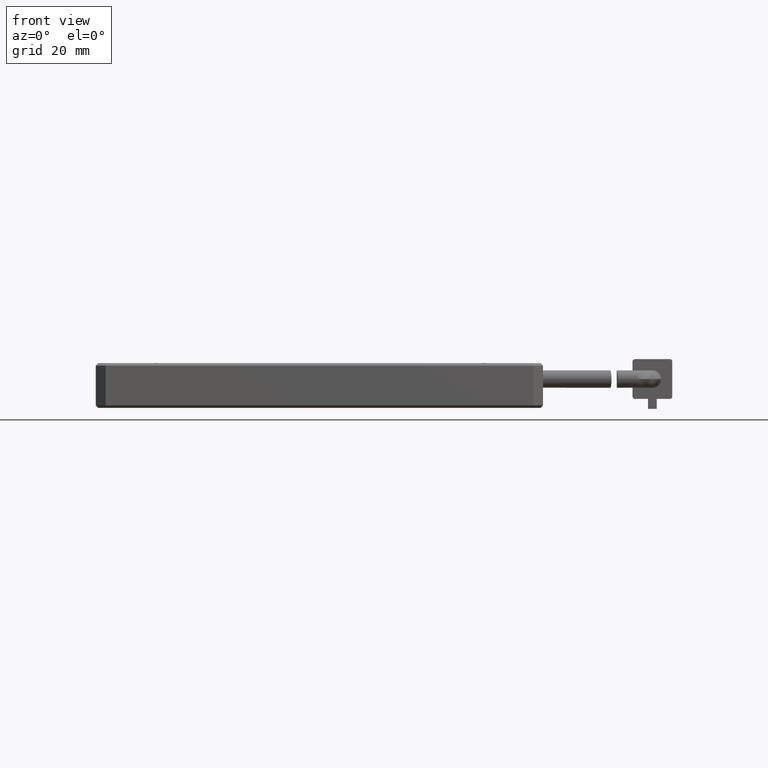
[diagram: clean part render]
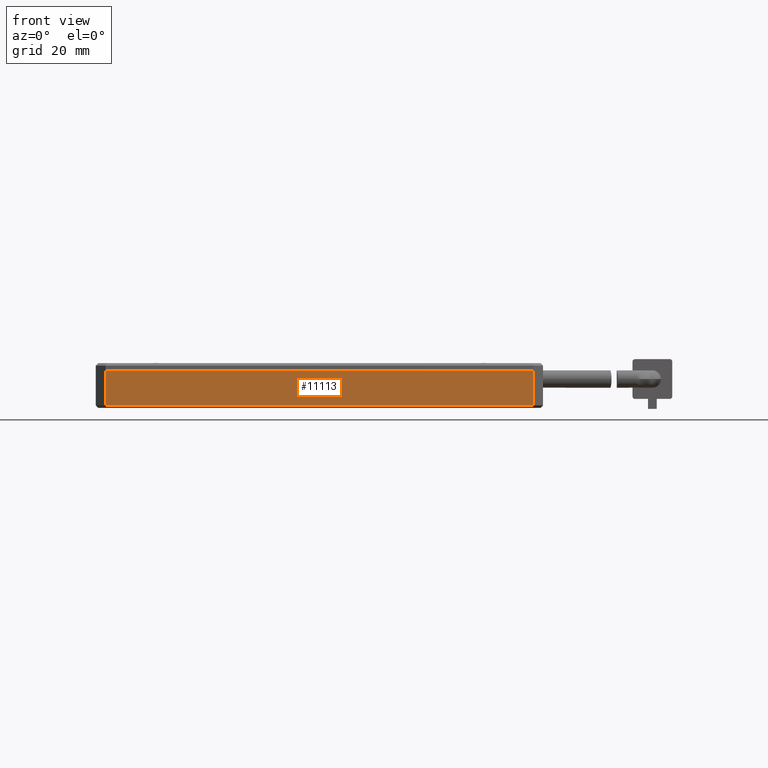
[diagram: same view with one face highlighted and labeled with its STEP entity id]
A machine part, front view. The second image highlights one B-rep face of the part: STEP entity #11113.
In plain terms, the highlighted planar face has unit normal (0, 1, 0).
Its self-contained STEP definition (entity closure, byte-faithful):
#399 = CARTESIAN_POINT ( 'NONE',  ( 10.92074074074067600, -17.05999999999999500, 4.500000000000000000 ) ) ;
#864 = ORIENTED_EDGE ( 'NONE', *, *, #14455, .F. ) ;
#1159 = EDGE_CURVE ( 'NONE', #4286, #2166, #16264, .T. ) ;
#1197 = DIRECTION ( 'NONE',  ( 0.0000000000000000000, -0.0000000000000000000, 1.000000000000000000 ) ) ;
#1343 = ORIENTED_EDGE ( 'NONE', *, *, #11567, .F. ) ;
#1424 = VECTOR ( 'NONE', #9234, 1000.000000000000000 ) ;
#1719 = VERTEX_POINT ( 'NONE', #15684 ) ;
#1876 = LINE ( 'NONE', #16011, #1424 ) ;
#2166 = VERTEX_POINT ( 'NONE', #399 ) ;
#4159 = VECTOR ( 'NONE', #7858, 1000.000000000000000 ) ;
#4286 = VERTEX_POINT ( 'NONE', #11779 ) ;
#4610 = FACE_OUTER_BOUND ( 'NONE', #14299, .T. ) ;
#4638 = CARTESIAN_POINT ( 'NONE',  ( -77.07925925925924600, -17.05999999999999200, 4.500000000000000000 ) ) ;
#5507 = CARTESIAN_POINT ( 'NONE',  ( -75.07925925925924600, -17.05999999999999200, 4.500000000000000000 ) ) ;
#5703 = VECTOR ( 'NONE', #8481, 1000.000000000000000 ) ;
#6039 = DIRECTION ( 'NONE',  ( 0.0000000000000000000, -0.0000000000000000000, 1.000000000000000000 ) ) ;
#6456 = CARTESIAN_POINT ( 'NONE',  ( 10.92074074074068900, -17.05999999999999200, 4.500000000000000000 ) ) ;
#7858 = DIRECTION ( 'NONE',  ( -0.0000000000000000000, 0.0000000000000000000, -1.000000000000000000 ) ) ;
#8481 = DIRECTION ( 'NONE',  ( 1.000000000000000000, 0.0000000000000000000, -0.0000000000000000000 ) ) ;
#8659 = CARTESIAN_POINT ( 'NONE',  ( -77.07925925925924600, -17.05999999999999200, 4.500000000000000000 ) ) ;
#8729 = LINE ( 'NONE', #5507, #15162 ) ;
#9234 = DIRECTION ( 'NONE',  ( -1.000000000000000000, -0.0000000000000000000, -0.0000000000000000000 ) ) ;
#10149 = ORIENTED_EDGE ( 'NONE', *, *, #12362, .F. ) ;
#11113 = ADVANCED_FACE ( 'NONE', ( #4610 ), #15633, .F. ) ;
#11388 = AXIS2_PLACEMENT_3D ( 'NONE', #4638, #14316, #6039 ) ;
#11567 = EDGE_CURVE ( 'NONE', #1719, #4286, #8729, .T. ) ;
#11779 = CARTESIAN_POINT ( 'NONE',  ( -75.07925925925924600, -17.05999999999999200, 4.500000000000000000 ) ) ;
#12187 = CARTESIAN_POINT ( 'NONE',  ( 10.92074074074074600, -17.05999999999999200, -2.499999999999997800 ) ) ;
#12362 = EDGE_CURVE ( 'NONE', #13749, #1719, #1876, .T. ) ;
#13145 = ORIENTED_EDGE ( 'NONE', *, *, #1159, .F. ) ;
#13749 = VERTEX_POINT ( 'NONE', #12187 ) ;
#14299 = EDGE_LOOP ( 'NONE', ( #10149, #864, #13145, #1343 ) ) ;
#14316 = DIRECTION ( 'NONE',  ( 0.0000000000000000000, 1.000000000000000000, 0.0000000000000000000 ) ) ;
#14455 = EDGE_CURVE ( 'NONE', #2166, #13749, #14791, .T. ) ;
#14791 = LINE ( 'NONE', #6456, #4159 ) ;
#15162 = VECTOR ( 'NONE', #1197, 1000.000000000000000 ) ;
#15633 = PLANE ( 'NONE',  #11388 ) ;
#15684 = CARTESIAN_POINT ( 'NONE',  ( -75.07925925925924600, -17.05999999999999200, -2.499999999999998700 ) ) ;
#16011 = CARTESIAN_POINT ( 'NONE',  ( -77.07925925925924600, -17.05999999999999200, -2.499999999999999600 ) ) ;
#16264 = LINE ( 'NONE', #8659, #5703 ) ;